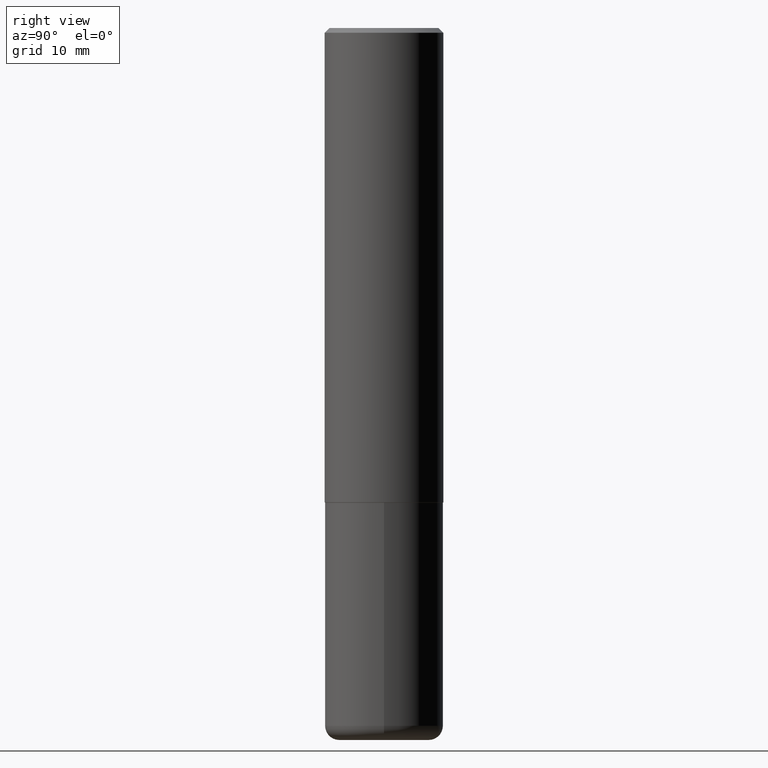
[diagram: clean part render]
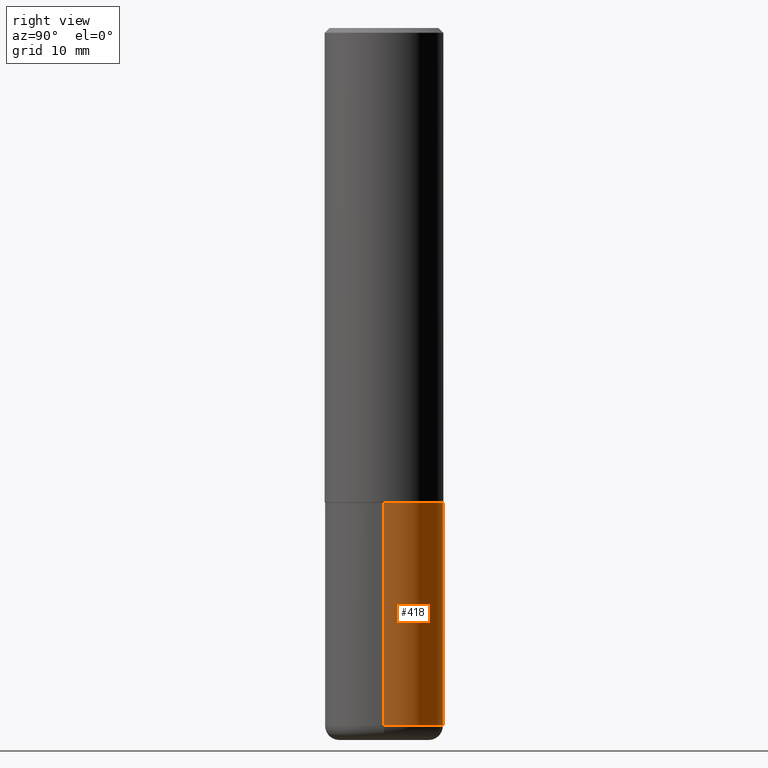
[diagram: same view with one face highlighted and labeled with its STEP entity id]
A machine part, right view. The second image highlights one B-rep face of the part: STEP entity #418.
In plain terms, the highlighted cylindrical surface (partial cylindrical patch) has radius 6.35 mm, axis along (-0, 0, 1).
Its self-contained STEP definition (entity closure, byte-faithful):
#1 = CARTESIAN_POINT ( 'NONE',  ( 0.2500000000000000000, -8.728703347107858632E-15, -2.000000000000000444 ) ) ;
#9 = EDGE_CURVE ( 'NONE', #376, #23, #234, .T. ) ;
#19 = CARTESIAN_POINT ( 'NONE',  ( 4.890937612370273754E-29, -6.982962677686291954E-15, -2.000000000000000444 ) ) ;
#23 = VERTEX_POINT ( 'NONE', #106 ) ;
#50 = EDGE_CURVE ( 'NONE', #239, #51, #306, .T. ) ;
#51 = VERTEX_POINT ( 'NONE', #186 ) ;
#84 = CARTESIAN_POINT ( 'NONE',  ( 0.2500000000000000000, -1.745740669421566678E-15, 1.219044193948983948E-29 ) ) ;
#101 = AXIS2_PLACEMENT_3D ( 'NONE', #311, #281, #158 ) ;
#106 = CARTESIAN_POINT ( 'NONE',  ( -0.2500000000000000000, -6.847602067542319531E-15, -2.000000000000000444 ) ) ;
#110 = DIRECTION ( 'NONE',  ( -2.445468806185136597E-29, 3.491481338843145583E-15, 1.000000000000000000 ) ) ;
#111 = ORIENTED_EDGE ( 'NONE', *, *, #50, .T. ) ;
#120 = EDGE_CURVE ( 'NONE', #239, #376, #249, .T. ) ;
#131 = ORIENTED_EDGE ( 'NONE', *, *, #330, .T. ) ;
#144 = FACE_OUTER_BOUND ( 'NONE', #277, .T. ) ;
#156 = VECTOR ( 'NONE', #293, 39.37007874015748143 ) ;
#158 = DIRECTION ( 'NONE',  ( 1.000000000000000000, -6.982962677686262766E-15, 0.000000000000000000 ) ) ;
#166 = LINE ( 'NONE', #415, #156 ) ;
#186 = CARTESIAN_POINT ( 'NONE',  ( -0.2499999999999998335, -8.488598296798600727E-15, -2.940000000000000391 ) ) ;
#207 = AXIS2_PLACEMENT_3D ( 'NONE', #238, #110, #267 ) ;
#234 = CIRCLE ( 'NONE', #382, 0.2500000000000000000 ) ;
#238 = CARTESIAN_POINT ( 'NONE',  ( 0.000000000000000000, 0.000000000000000000, 0.000000000000000000 ) ) ;
#239 = VERTEX_POINT ( 'NONE', #377 ) ;
#249 = LINE ( 'NONE', #84, #261 ) ;
#261 = VECTOR ( 'NONE', #372, 39.37007874015748143 ) ;
#267 = DIRECTION ( 'NONE',  ( 1.000000000000000000, -6.982962677686266711E-15, 4.876176775795935793E-29 ) ) ;
#272 = ORIENTED_EDGE ( 'NONE', *, *, #9, .F. ) ;
#277 = EDGE_LOOP ( 'NONE', ( #111, #131, #272, #305 ) ) ;
#281 = DIRECTION ( 'NONE',  ( -2.445468806185136597E-29, 3.491481338843145583E-15, 1.000000000000000000 ) ) ;
#293 = DIRECTION ( 'NONE',  ( -2.445468806185136877E-29, 3.491481338843145188E-15, 1.000000000000000000 ) ) ;
#305 = ORIENTED_EDGE ( 'NONE', *, *, #120, .F. ) ;
#306 = CIRCLE ( 'NONE', #101, 0.2500000000000000000 ) ;
#311 = CARTESIAN_POINT ( 'NONE',  ( 7.189678290184301639E-29, -1.026495513619884961E-14, -2.940000000000000391 ) ) ;
#330 = EDGE_CURVE ( 'NONE', #51, #23, #166, .T. ) ;
#344 = DIRECTION ( 'NONE',  ( 1.000000000000000000, -6.982962677686266711E-15, 0.000000000000000000 ) ) ;
#369 = DIRECTION ( 'NONE',  ( -2.445468806185136597E-29, 3.491481338843145583E-15, 1.000000000000000000 ) ) ;
#372 = DIRECTION ( 'NONE',  ( -2.445468806185136877E-29, 3.491481338843145188E-15, 1.000000000000000000 ) ) ;
#376 = VERTEX_POINT ( 'NONE', #1 ) ;
#377 = CARTESIAN_POINT ( 'NONE',  ( 0.2499999999999998335, -1.201069580562041471E-14, -2.940000000000000391 ) ) ;
#382 = AXIS2_PLACEMENT_3D ( 'NONE', #19, #369, #344 ) ;
#390 = CYLINDRICAL_SURFACE ( 'NONE', #207, 0.2500000000000000000 ) ;
#415 = CARTESIAN_POINT ( 'NONE',  ( -0.2500000000000000000, 1.776356839400250465E-15, -1.229733772563726445E-29 ) ) ;
#418 = ADVANCED_FACE ( 'NONE', ( #144 ), #390, .T. ) ;